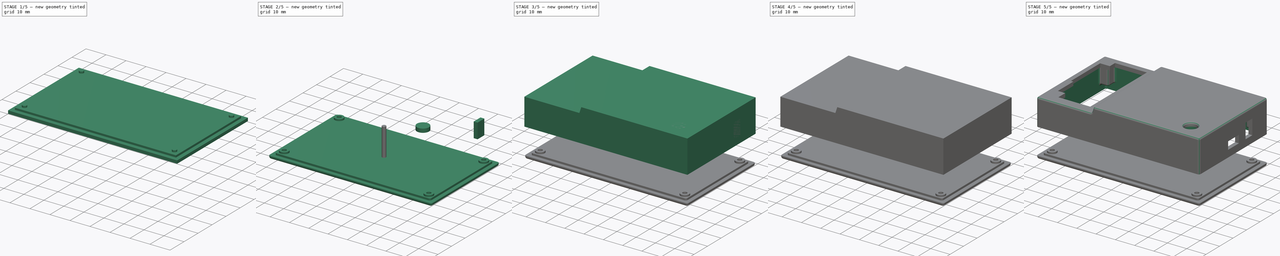
[diagram: build sequence overview — one tinted view per stage of 5, left to right]
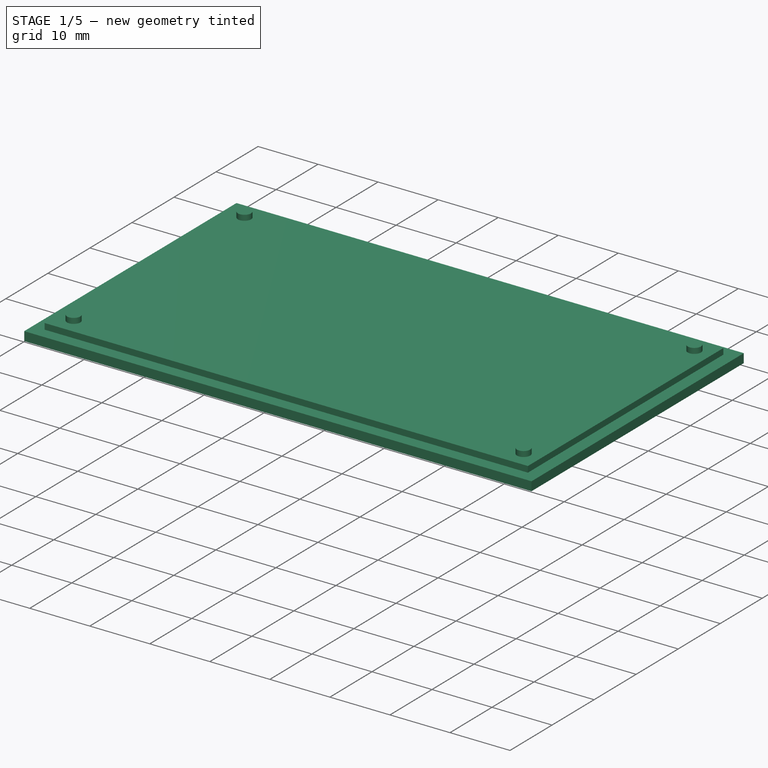
[diagram: stage 1 of 5 — iso view after this stage's code; geometry added in this stage tinted green]
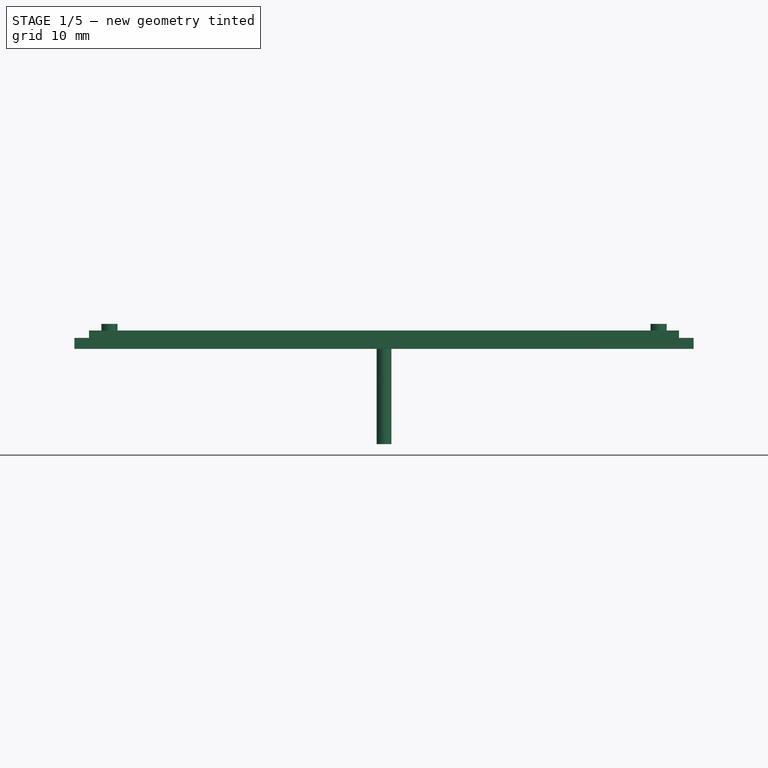
[diagram: stage 1 of 5 — front view after this stage's code; geometry added in this stage tinted green]
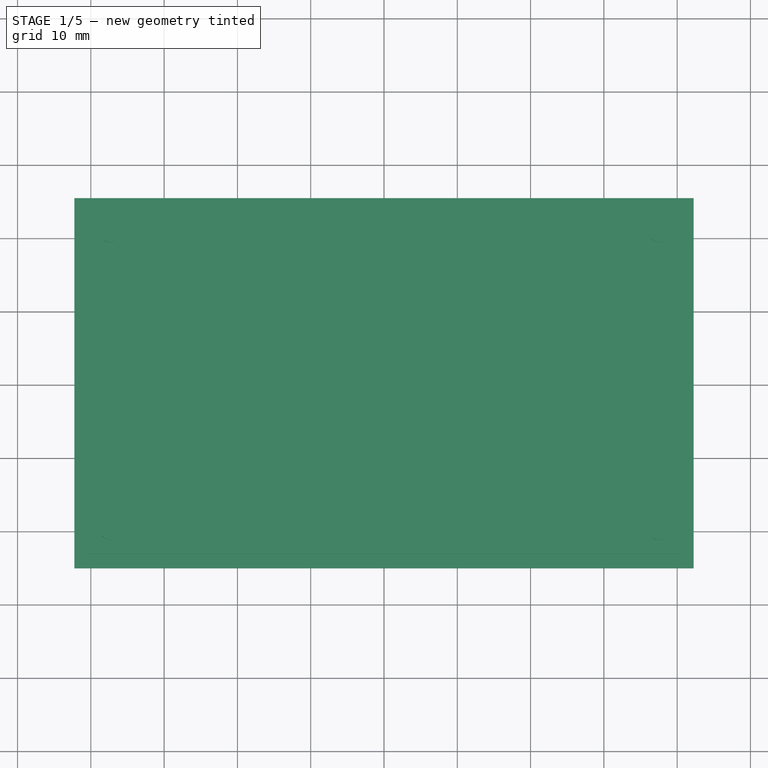
[diagram: stage 1 of 5 — top view after this stage's code; geometry added in this stage tinted green]
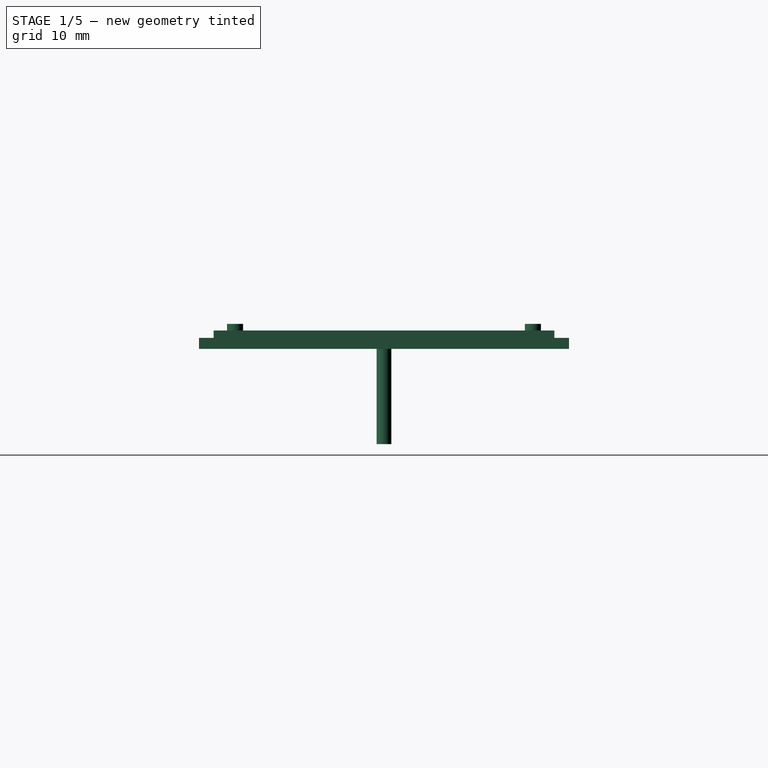
[diagram: stage 1 of 5 — right view after this stage's code; geometry added in this stage tinted green]
FCSTD DOCUMENT  (FreeCAD 0.20R)
Label: st-link-housing
License: All rights reserved
LicenseURL: http://en.wikipedia.org/wiki/All_rights_reserved
objects: Part::Cylinder×11, Part::MultiFuse×11, Part::Cut×9, Part::Part2DObjectPython×6, Part::Box×6, Part::Extrusion×5, PartDesign::Body×4, PartDesign::FeatureBase×3, Part::Fillet×2, Part::Cone×1, Sketcher::SketchObject×1, PartDesign::Revolution×1
note: 61 computed .brp shape members not serialized (recipe doc carries the construction recipe); baked Part::Feature solids carry a one-line shape summary decoded from their .brp

FEATURE [Part::Box] Box004  label="internal_bottom"
  AttacherType = Attacher::AttachEngine3D
  Height = 1
  Length = 80.5
  Placement = pos=(0,0,1.5) rot=(0,0,1;0rad)
  Width = 46.5
FEATURE [Part::Box] Box005  label="external_bottom"
  AttacherType = Attacher::AttachEngine3D
  Height = 1.5
  Length = 84.5
  Placement = pos=(-2,-2,0) rot=(0,0,1;0rad)
  Width = 50.5
FEATURE [Part::Cylinder] Cylinder024  label="screw_column_d"
  Angle = 360
  AttacherType = Attacher::AttachEngine3D
  FirstAngle = 0
  Height = 0.9
  Placement = pos=(37.47,-20.32,0) rot=(0,0,1;0rad)
  Radius = 2.25
  SecondAngle = 0
FEATURE [Part::MultiFuse] Fusion013  label="bottom"
  Placement = pos=(-40.25,-23.25,0) rot=(0,0,1;0rad)
  Shapes = -> [Box004,Box005]
FEATURE [Sketcher::SketchObject] Sketch
  FullyConstrained = false
  MapMode = 5
  Placement = pos=(0,0,0) rot=(1,0,0;1.5708rad)
  Support = -> [XZ_Plane]
  sketch-geometry (6):
    g0: LineSegment StartX=0 StartY=0 StartZ=0 EndX=2 EndY=0 EndZ=0
    g1: LineSegment StartX=2 StartY=0 StartZ=0 EndX=2 EndY=0.2 EndZ=0
    g2: LineSegment StartX=2 StartY=0.2 StartZ=0 EndX=1.1 EndY=1.1 EndZ=0
    g3: LineSegment StartX=0 StartY=0 StartZ=0 EndX=0 EndY=3.4 EndZ=0
    g4: LineSegment StartX=1.1 StartY=3.4 StartZ=0 EndX=1.1 EndY=1.1 EndZ=0
    g5: LineSegment StartX=0 StartY=3.4 StartZ=0 EndX=1.1 EndY=3.4 EndZ=0
  constraints (9):
    c: Coincident(g0,g-1)
    c: PointOnObject(g0,g-1)
    c: Coincident(g1,g0)
    c: Vertical(g1)
    c: PointOnObject(g2,g1)
    c: Coincident(g3,g0)
    c: PointOnObject(g3,g-2)
    c: Vertical(g4)
    c: Coincident(g5,g3)
FEATURE [PartDesign::Revolution] Revolution
  Angle = 360
  Axis = (0,-2e-16,1)
  Base = (0,0,0)
  Placement = pos=(0,0,0) rot=(1,0,0;1.5708rad)
  Profile = -> Sketch
  ReferenceAxis = -> Sketch [V_Axis]
  Reversed = true
FEATURE [PartDesign::Body] Body  label="bottom_screw_hole_a"
  Group = -> [Sketch,Revolution]
  Origin = -> Origin
  Placement = pos=(-37.47,-20.32,0) rot=(0,0,1;0rad)
  Tip = -> Revolution
FEATURE [PartDesign::FeatureBase] Clone
  BaseFeature = -> Body
FEATURE [PartDesign::Body] Body001  label="bottom_screw_hole_b"
  BaseFeature = -> Body
  Group = -> [Clone]
  Origin = -> Origin001
  Placement = pos=(-37.47,20.32,0) rot=(0,0,1;0rad)
  Tip = -> Clone
FEATURE [PartDesign::FeatureBase] Clone001
  BaseFeature = -> Body
FEATURE [PartDesign::Body] Body002  label="bottom_screw_hole_c"
  BaseFeature = -> Body
  Group = -> [Clone001]
  Origin = -> Origin002
  Placement = pos=(37.47,20.32,0) rot=(0,0,1;0rad)
  Tip = -> Clone001
FEATURE [PartDesign::FeatureBase] Clone002
  BaseFeature = -> Body
FEATURE [PartDesign::Body] Body003  label="bottom_screw_hole_d"
  BaseFeature = -> Body
  Group = -> [Clone002]
  Origin = -> Origin003
  Placement = pos=(37.47,-20.32,0) rot=(0,0,1;0rad)
  Tip = -> Clone002
FEATURE [Part::MultiFuse] Fusion016  label="bottom_screw_holes"
  Shapes = -> [Body,Body001,Body002,Body003]
FEATURE [Part::Cylinder] Cylinder025  label="hack"
  Angle = 360
  AttacherType = Attacher::AttachEngine3D
  FirstAngle = 0
  Height = 15
  Placement = pos=(0,0,-13) rot=(0,0,1;0rad)
  Radius = 1
  SecondAngle = 0
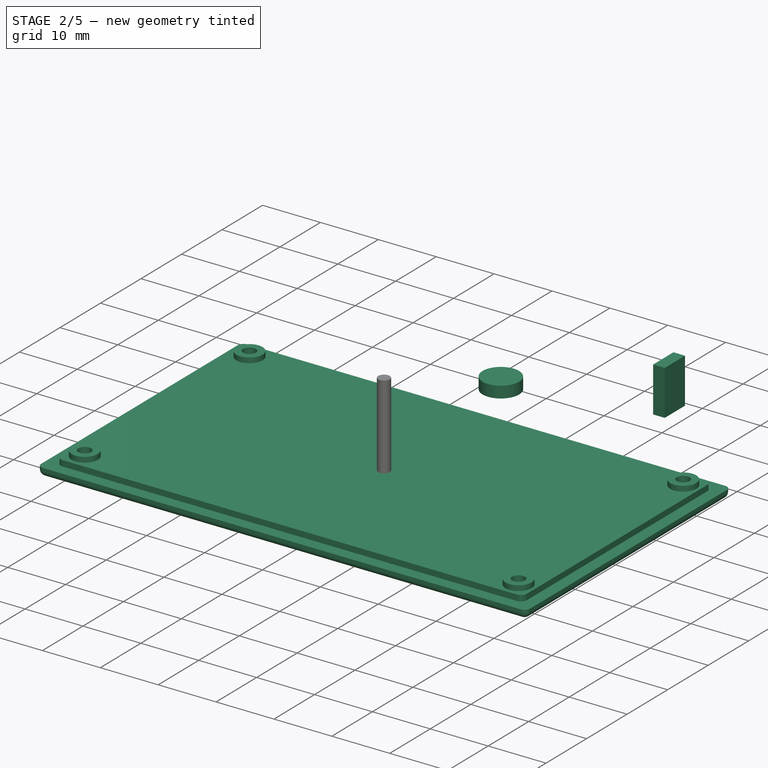
[diagram: stage 2 of 5 — iso view after this stage's code; geometry added in this stage tinted green]
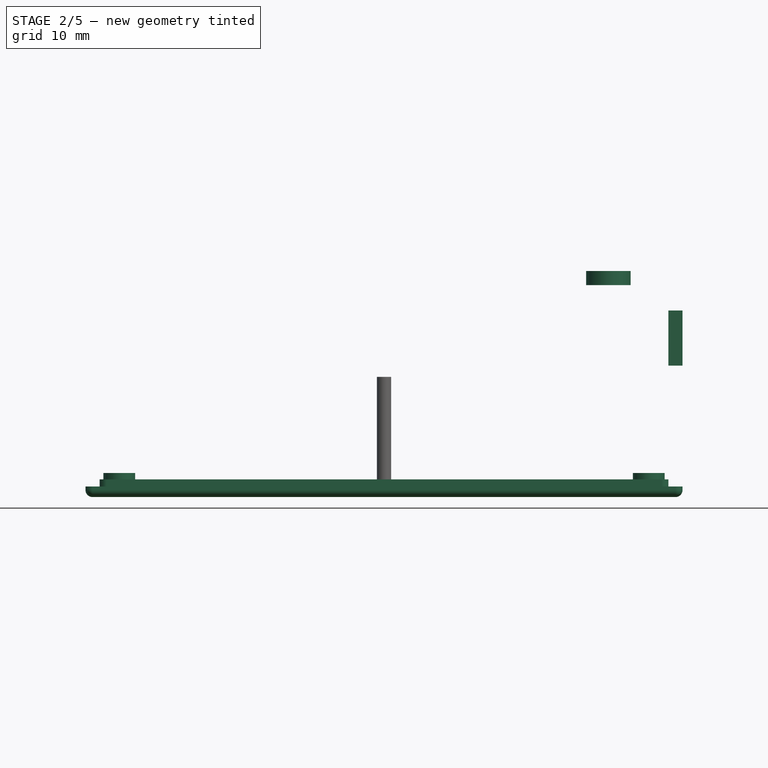
[diagram: stage 2 of 5 — front view after this stage's code; geometry added in this stage tinted green]
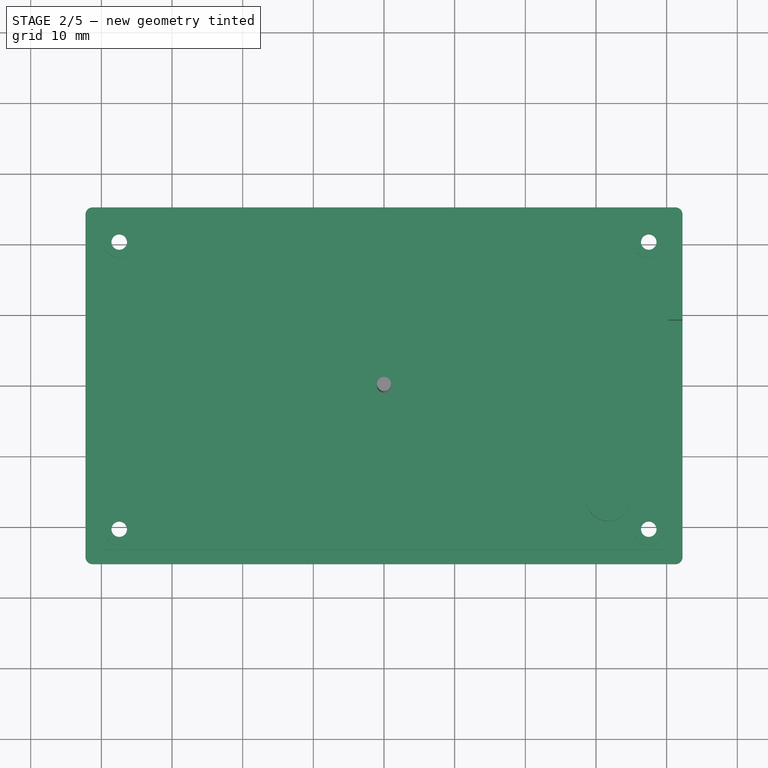
[diagram: stage 2 of 5 — top view after this stage's code; geometry added in this stage tinted green]
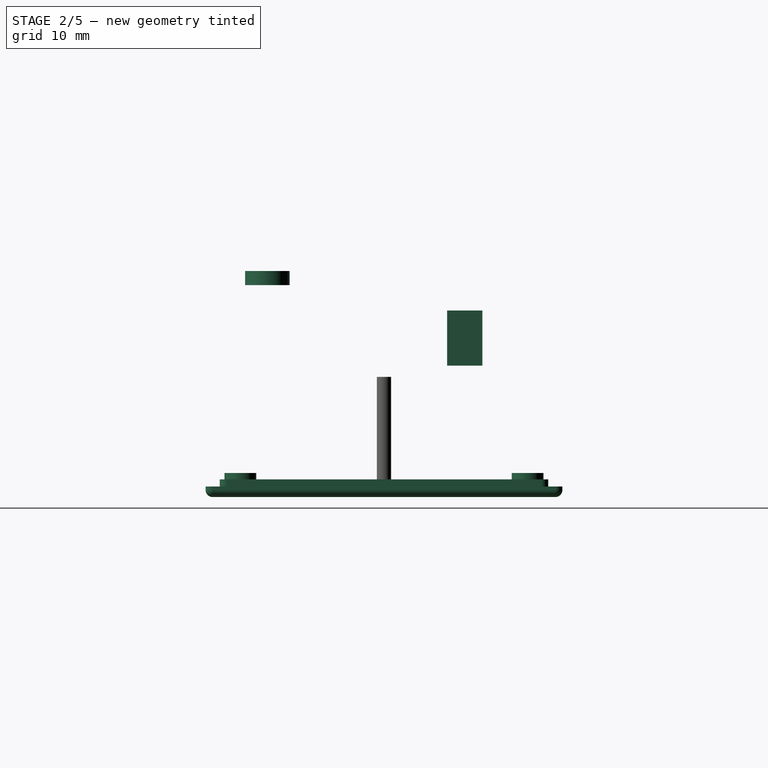
[diagram: stage 2 of 5 — right view after this stage's code; geometry added in this stage tinted green]
FEATURE [Part::Extrusion] Extrude007  label="power-extrude"
  Base = -> Rectangle002
  Dir = (1,0,0)
  DirMode = 2
  FaceMakerClass = Part::FaceMakerBullseye
  LengthFwd = 2
  LengthRev = 0
  Placement = pos=(40.25,0,0) rot=(0,0,1;0rad)
  Solid = false
  Symmetric = false
FEATURE [Part::Cylinder] Cylinder012  label="led_window"
  Angle = 360
  AttacherType = Attacher::AttachEngine3D
  FirstAngle = 0
  Height = 2
  Placement = pos=(31.75,-16.51,15) rot=(0,0,1;0rad)
  Radius = 3.15
  SecondAngle = 0
FEATURE [Part::Cylinder] Cylinder021  label="screw_column_a"
  Angle = 360
  AttacherType = Attacher::AttachEngine3D
  FirstAngle = 0
  Height = 0.9
  Placement = pos=(-37.47,20.32,0) rot=(0,0,1;0rad)
  Radius = 2.25
  SecondAngle = 0
FEATURE [Part::Cylinder] Cylinder022  label="screw_column_b"
  Angle = 360
  AttacherType = Attacher::AttachEngine3D
  FirstAngle = 0
  Height = 0.9
  Placement = pos=(-37.47,-20.32,0) rot=(0,0,1;0rad)
  Radius = 2.25
  SecondAngle = 0
FEATURE [Part::Cylinder] Cylinder023  label="screw_column_c"
  Angle = 360
  AttacherType = Attacher::AttachEngine3D
  FirstAngle = 0
  Height = 0.9
  Placement = pos=(37.47,20.32,0) rot=(0,0,1;0rad)
  Radius = 2.25
  SecondAngle = 0
FEATURE [Part::MultiFuse] Fusion011  label="screw_columns"
  Placement = pos=(0,0,2.5) rot=(0,0,1;0rad)
  Shapes = -> [Cylinder021,Cylinder022,Cylinder023,Cylinder024]
FEATURE [Part::MultiFuse] Fusion014  label="bottom_with_columns"
  Shapes = -> [Fusion013,Fusion011]
FEATURE [Part::Cut] Cut014  label="bottom_with_screw_holes"
  Base = -> Fusion014
  Tool = -> Fusion016
FEATURE [Part::Fillet] Fillet001  label="bottom_body"
  Base = -> Cut014
  Edges = 12 edges r=1.01: [Edge1,Edge3,Edge4,Edge5,Edge6,Edge14,Edge15,Edge16,Edge21,Edge23,Edge24,Edge27]
  Placement = pos=(0,0,-15) rot=(0,0,1;0rad)
FEATURE [Part::MultiFuse] Fusion017  label="bottom_body_jlcpcb"
  Shapes = -> [Fillet001,Cylinder025]
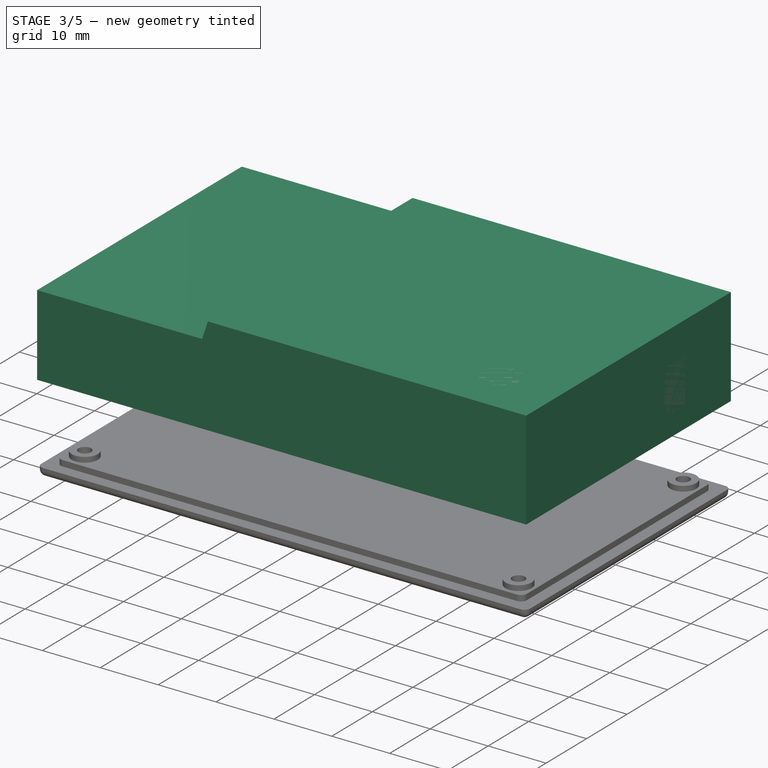
[diagram: stage 3 of 5 — iso view after this stage's code; geometry added in this stage tinted green]
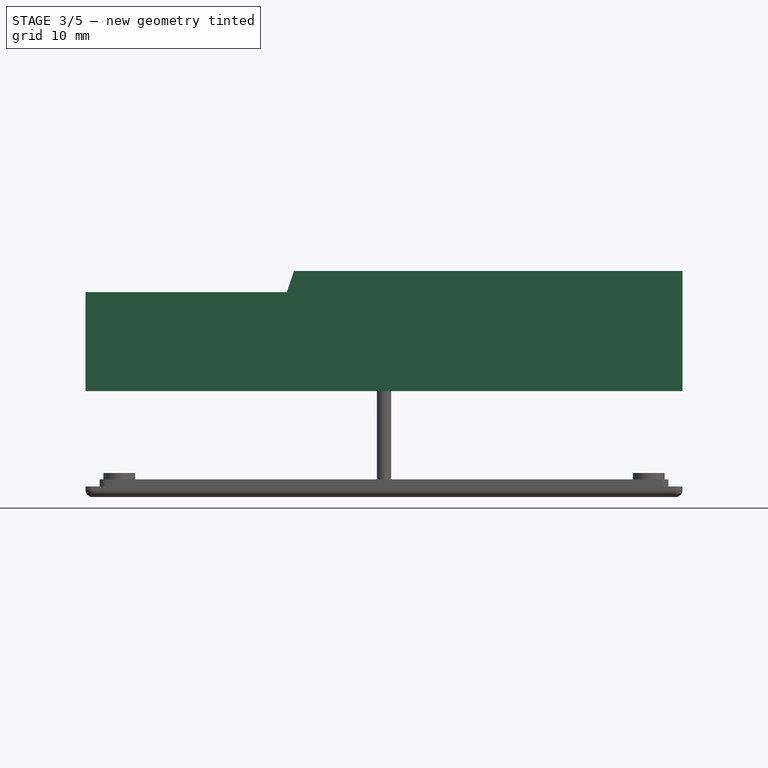
[diagram: stage 3 of 5 — front view after this stage's code; geometry added in this stage tinted green]
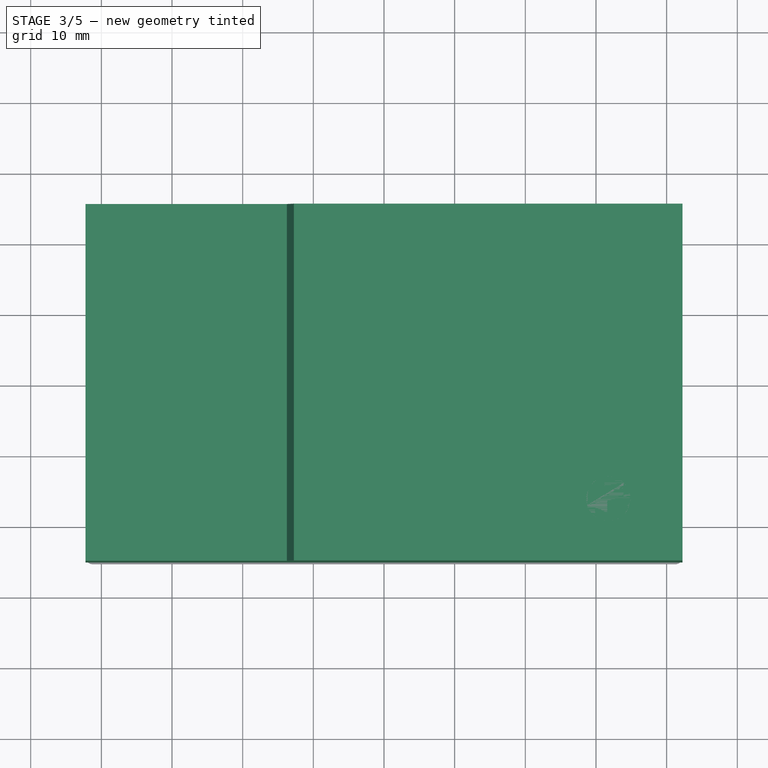
[diagram: stage 3 of 5 — top view after this stage's code; geometry added in this stage tinted green]
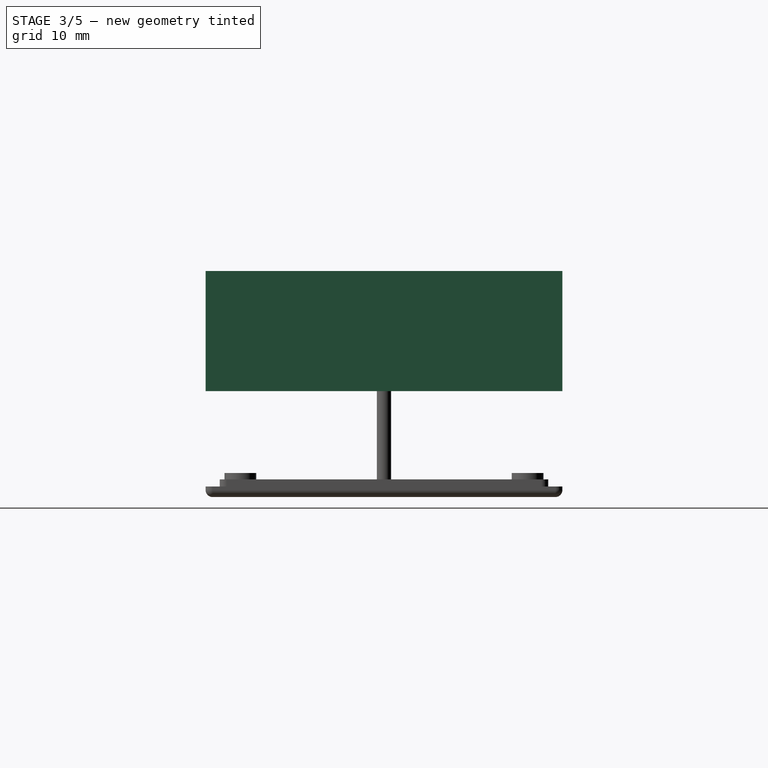
[diagram: stage 3 of 5 — right view after this stage's code; geometry added in this stage tinted green]
FEATURE [Part::Box] Box003  label="mounting_cube_c"
  AttacherType = Attacher::AttachEngine3D
  Height = 11.4
  Length = 4.68
  Placement = pos=(35.57,-23.25,3.6) rot=(0,0,1;0rad)
  Width = 4.82
FEATURE [Part::Cylinder] Cylinder011  label="screw_hole_c"
  Angle = 360
  AttacherType = Attacher::AttachEngine3D
  FirstAngle = 0
  Height = 6
  Placement = pos=(37.465,-20.32,3.6) rot=(0,0,1;0rad)
  Radius = 0.8
  SecondAngle = 0
FEATURE [Part::Cut] Cut010  label="mounting_rack_c"
  Base = -> Box003
  Tool = -> Cylinder011
FEATURE [Part::Part2DObjectPython] Wire005  label="extermal-wire"  # Draft 2D object (typed FeaturePython)
  Area = 1349.5
  ChamferSize = 0
  Closed = true
  End = (-42.25,0,0)
  FilletRadius = 0
  Length = 202.162
  MakeFace = true
  Placement = pos=(42.25,0,0) rot=(1,0,0;1.5708rad)
  Points = (6) [(0,0,0),(0,17,0),(-55,17,0),(-56,14,0),(-84.5,14,0),(-84.5,0,0)]
  Start = (42.25,0,0)
  Subdivisions = 0
FEATURE [Part::Extrusion] Extrude  label="external_extrude"
  Base = -> Wire005
  Dir = (0,-1,2e-16)
  DirMode = 2
  FaceMakerClass = Part::FaceMakerBullseye
  LengthFwd = 50.5
  LengthRev = 0
  Solid = false
  Symmetric = true
FEATURE [Part::Part2DObjectPython] Wire  label="connectors_wire"  # Draft 2D object (typed FeaturePython)
  Area = 844.08
  ChamferSize = 0
  Closed = true
  End = (-34.29,21.59,12)
  FilletRadius = 0
  Length = 126.9
  MakeFace = true
  Points = (10) [(-17.78,21.59,12),(-17.78,-20.32,12),(-34.29,-20.32,12),(-34.29,-15.24,12),(-38.1,-15.24,12),(-38.1,-3.81,12),(-39.32,-3.81,12),(-39.32,17.78,12),(-34.29,17.78,12),(-34.29,21.59,12)]
  Start = (-17.78,21.59,12)
  Subdivisions = 0
FEATURE [Part::Extrusion] Extrude005  label="dbg_connector"
  Base = -> Wire
  Dir = (0,0,1)
  DirMode = 2
  FaceMakerClass = Part::FaceMakerBullseye
  LengthFwd = 2
  LengthRev = 0
  Solid = false
  Symmetric = false
FEATURE [Part::Part2DObjectPython] Rectangle001  label="usb_rectangle"  # Draft 2D object (typed FeaturePython)
  Area = 32
  ChamferSize = 0
  Columns = 1
  FilletRadius = 0
  Height = 4
  Length = 8
  MakeFace = true
  Placement = pos=(0,-4,3.6) rot=(0.57735,0.57735,0.57735;2.0944rad)
  Rows = 1
FEATURE [Part::Part2DObjectPython] Rectangle002  label="power_rectangle"  # Draft 2D object (typed FeaturePython)
  Area = 39
  ChamferSize = 0
  Columns = 1
  FilletRadius = 0
  Height = 7.8
  Length = 5
  MakeFace = true
  Placement = pos=(0,8.93,3.6) rot=(0.57735,0.57735,0.57735;2.0944rad)
  Rows = 1
FEATURE [Part::Extrusion] Extrude006  label="usb-extrude"
  Base = -> Rectangle001
  Dir = (1,0,0)
  DirMode = 2
  FaceMakerClass = Part::FaceMakerBullseye
  LengthFwd = 2
  LengthRev = 0
  Placement = pos=(40.25,0,0) rot=(0,0,1;0rad)
  Solid = false
  Symmetric = false
FEATURE [Part::MultiFuse] Fusion001  label="usb_connector"
  Shapes = -> [Extrude006,Extrude007]
FEATURE [Part::MultiFuse] Fusion002  label="connector_window"
  Shapes = -> [Extrude005,Fusion001]
FEATURE [Part::MultiFuse] Fusion003  label="window"
  Shapes = -> [Fusion002,Cylinder012]
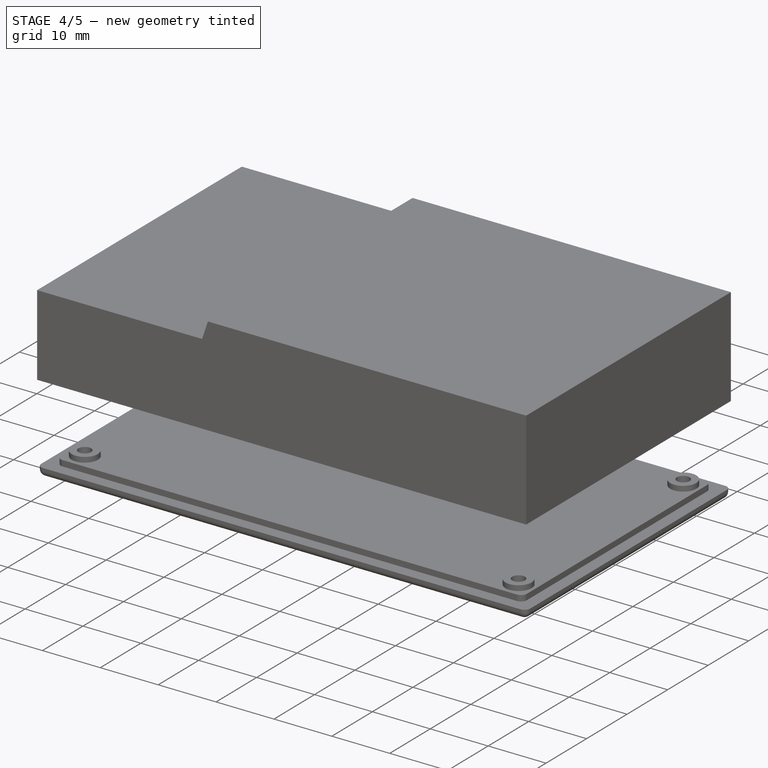
[diagram: stage 4 of 5 — iso view after this stage's code; geometry added in this stage tinted green]
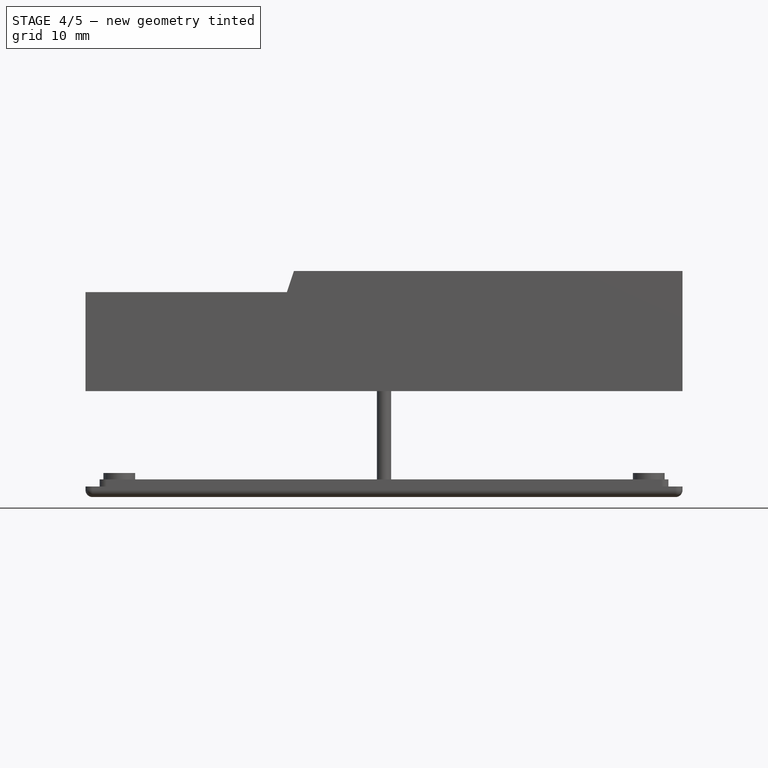
[diagram: stage 4 of 5 — front view after this stage's code; geometry added in this stage tinted green]
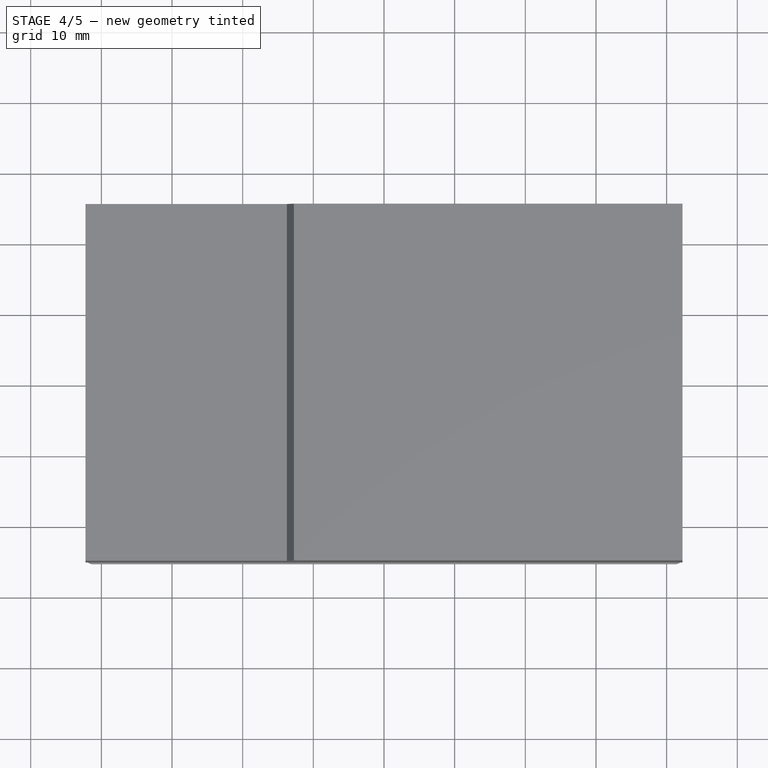
[diagram: stage 4 of 5 — top view after this stage's code; geometry added in this stage tinted green]
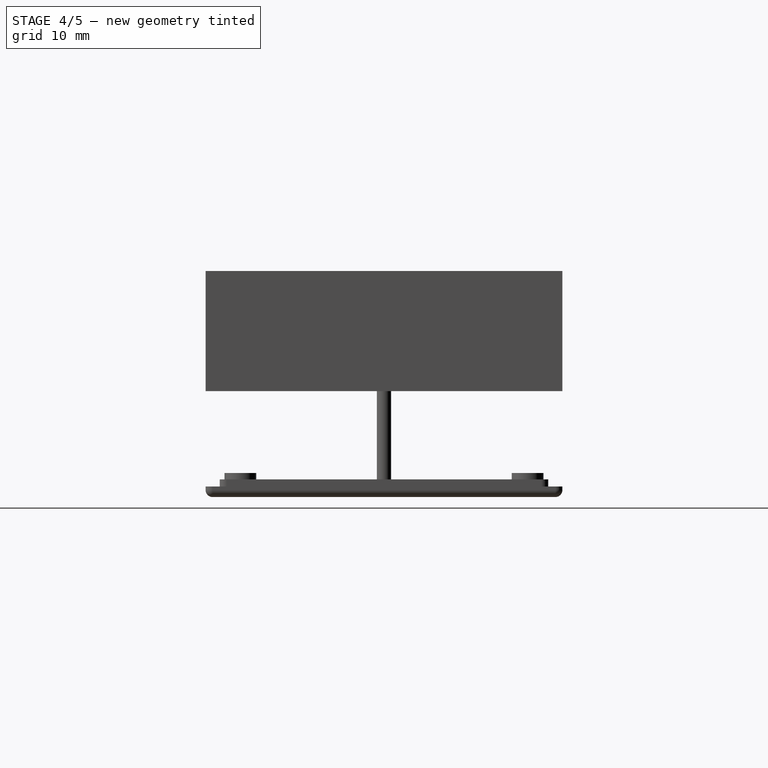
[diagram: stage 4 of 5 — right view after this stage's code; geometry added in this stage tinted green]
FEATURE [Part::Box] Box  label="mounting_cube_b"
  AttacherType = Attacher::AttachEngine3D
  Height = 8.4
  Length = 4.68
  Placement = pos=(-40.25,18.43,3.6) rot=(0,0,1;0rad)
  Width = 4.82
FEATURE [Part::Box] Box001  label="mounting_cube_a"
  AttacherType = Attacher::AttachEngine3D
  Height = 8.4
  Length = 4.68
  Placement = pos=(-40.25,-23.25,3.6) rot=(0,0,1;0rad)
  Width = 4.82
FEATURE [Part::Box] Box002  label="mounting_cube_d"
  AttacherType = Attacher::AttachEngine3D
  Height = 11.4
  Length = 4.68
  Placement = pos=(35.57,18.43,3.6) rot=(0,0,1;0rad)
  Width = 4.82
FEATURE [Part::Cylinder] Cylinder008  label="screw_hole_a"
  Angle = 360
  AttacherType = Attacher::AttachEngine3D
  FirstAngle = 0
  Height = 6
  Placement = pos=(-37.465,-20.32,3.6) rot=(0,0,1;0rad)
  Radius = 0.8
  SecondAngle = 0
FEATURE [Part::Cylinder] Cylinder009  label="screw_hole_b"
  Angle = 360
  AttacherType = Attacher::AttachEngine3D
  FirstAngle = 0
  Height = 6
  Placement = pos=(-37.465,20.32,3.6) rot=(0,0,1;0rad)
  Radius = 0.8
  SecondAngle = 0
FEATURE [Part::Cylinder] Cylinder010  label="screw_hole_d"
  Angle = 360
  AttacherType = Attacher::AttachEngine3D
  FirstAngle = 0
  Height = 6
  Placement = pos=(37.465,20.32,3.6) rot=(0,0,1;0rad)
  Radius = 0.8
  SecondAngle = 0
FEATURE [Part::Cut] Cut007  label="mounting_rack_a"
  Base = -> Box001
  Tool = -> Cylinder008
FEATURE [Part::Cut] Cut008  label="mounting_rack_b"
  Base = -> Box
  Tool = -> Cylinder009
FEATURE [Part::Cut] Cut009  label="mounting_rack_d"
  Base = -> Box002
  Tool = -> Cylinder010
FEATURE [Part::MultiFuse] Fusion  label="mounting_racks"
  Shapes = -> [Cut007,Cut008,Cut009,Cut010]
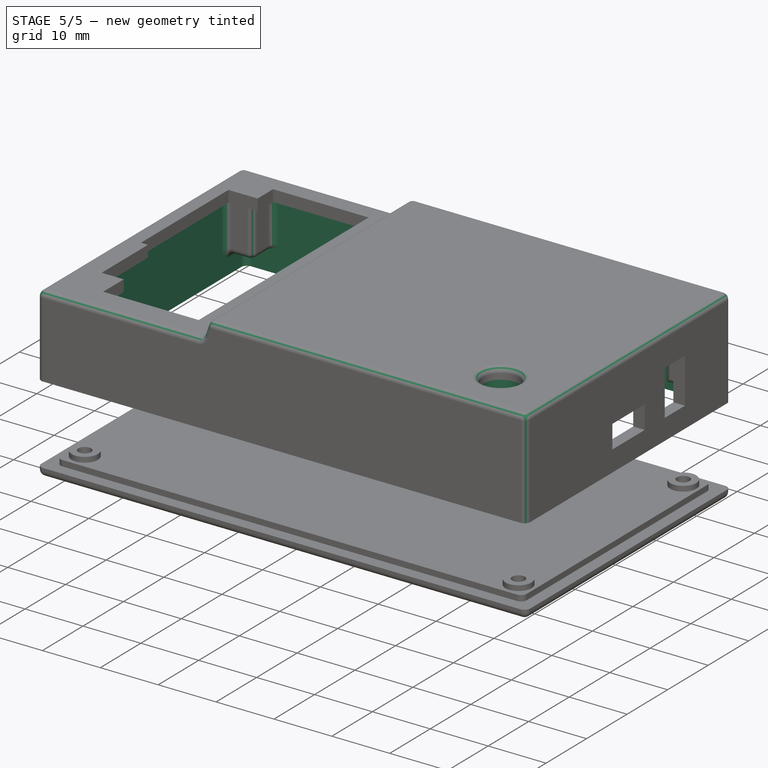
[diagram: stage 5 of 5 — iso view after this stage's code; geometry added in this stage tinted green]
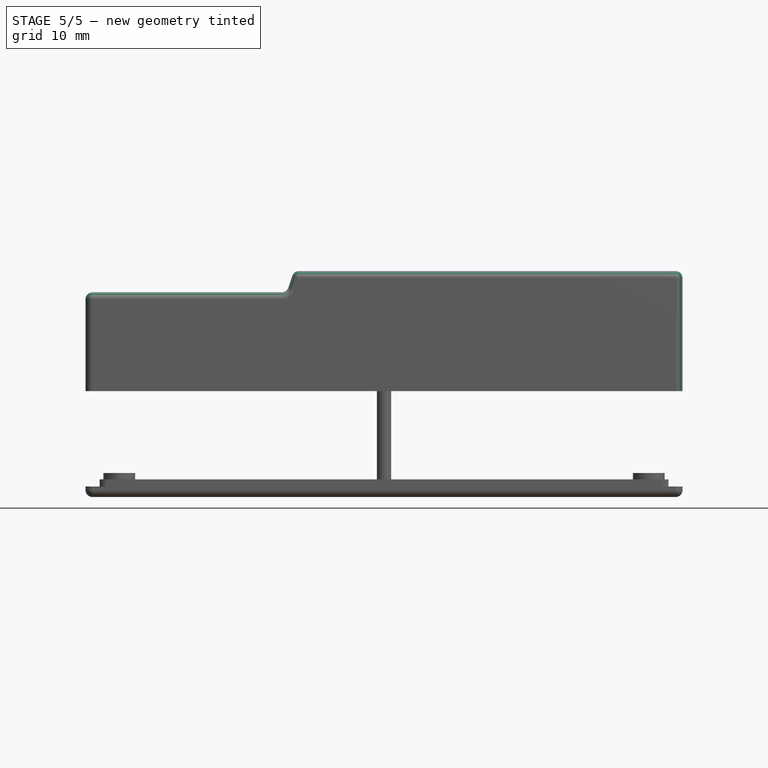
[diagram: stage 5 of 5 — front view after this stage's code; geometry added in this stage tinted green]
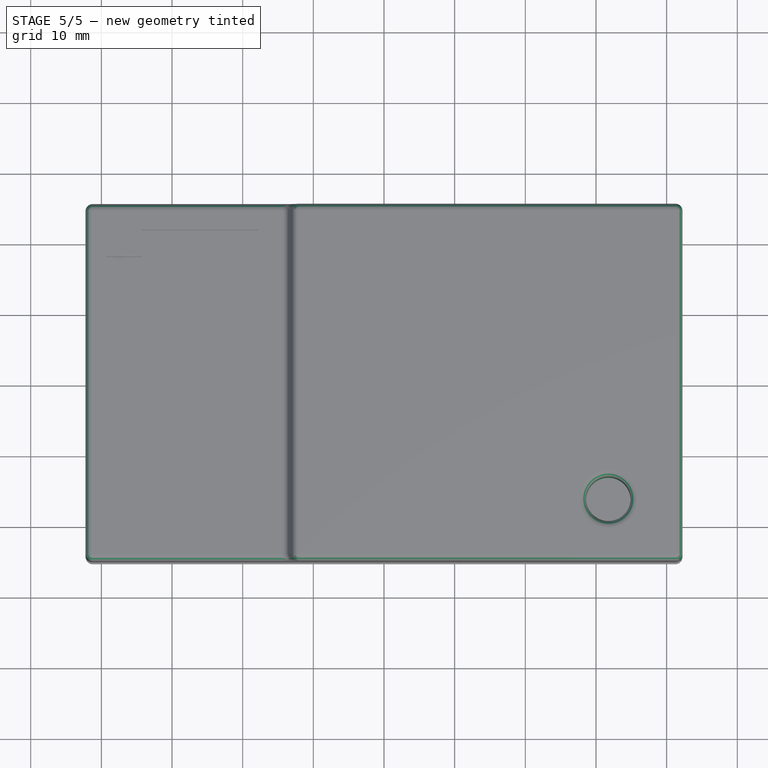
[diagram: stage 5 of 5 — top view after this stage's code; geometry added in this stage tinted green]
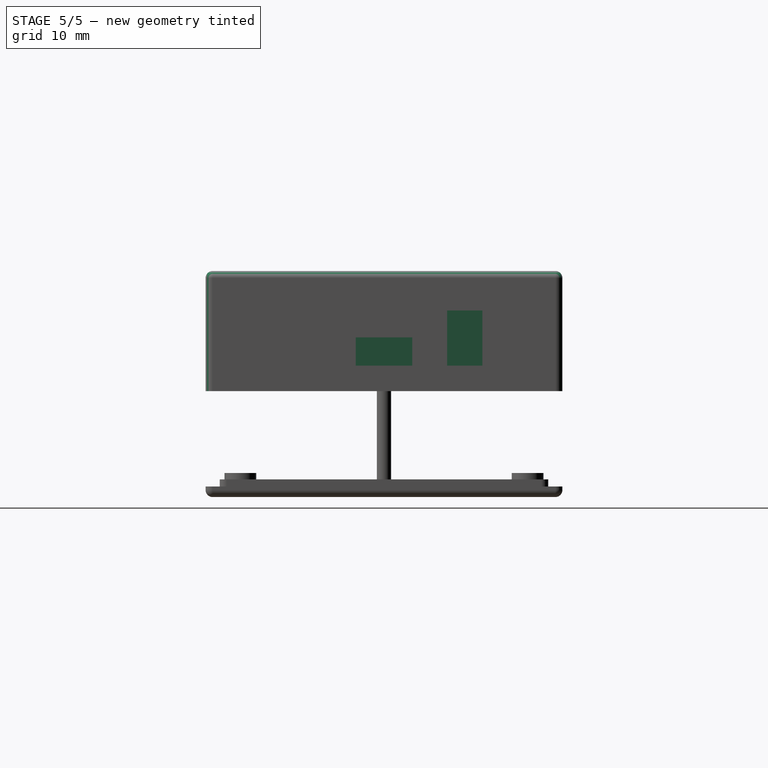
[diagram: stage 5 of 5 — right view after this stage's code; geometry added in this stage tinted green]
FEATURE [Part::Part2DObjectPython] Rectangle  # Draft 2D object (typed FeaturePython)
  Area = 5000
  ChamferSize = 0
  Columns = 1
  FilletRadius = 0
  Height = 50
  Length = 100
  MakeFace = true
  Placement = pos=(-50.0799,0,-20.22) rot=(1,0,0;1.5708rad)
  Rows = 1
FEATURE [Part::Part2DObjectPython] Wire004  label="internal-wire"  # Draft 2D object (typed FeaturePython)
  Area = 1123.5
  ChamferSize = 0
  Closed = true
  End = (-40.25,0,2e-15)
  FilletRadius = 0
  Length = 190.162
  MakeFace = true
  Placement = pos=(40.25,0,2e-15) rot=(1,0,0;1.5708rad)
  Points = (6) [(0,0,0),(0,15,0),(-52,15,0),(-53,12,0),(-80.5,12,0),(-80.5,0,0)]
  Start = (40.25,0,2e-15)
  Subdivisions = 0
FEATURE [Part::Extrusion] Extrude004  label="internal-extrude"
  Base = -> Wire004
  Dir = (0,-1,2e-16)
  DirMode = 2
  FaceMakerClass = Part::FaceMakerBullseye
  LengthFwd = 46.5
  LengthRev = 0
  Solid = false
  Symmetric = true
FEATURE [Part::Cut] Cut011  label="internal_mounting_racks"
  Base = -> Extrude004
  Tool = -> Fusion
FEATURE [Part::Cone] Cone  label="led_cone"
  Angle = 360
  AttacherType = Attacher::AttachEngine3D
  Height = 9
  Placement = pos=(31.75,-16.51,6) rot=(0,0,1;0rad)
  Radius1 = 5
  Radius2 = 6
FEATURE [Part::Cylinder] Cylinder  label="led_cylinder"
  Angle = 360
  AttacherType = Attacher::AttachEngine3D
  FirstAngle = 0
  Height = 9
  Placement = pos=(31.75,-16.51,6) rot=(0,0,1;0rad)
  Radius = 3.15
  SecondAngle = 0
FEATURE [Part::Cut] Cut  label="top"
  Base = -> Extrude
  Tool = -> Cut011
FEATURE [Part::Cut] Cut012  label="led_tower"
  Base = -> Cone
  Tool = -> Cylinder
FEATURE [Part::Cut] Cut013  label="top_with_window"
  Base = -> Cut
  Tool = -> Fusion003
FEATURE [Part::Fillet] Fillet  label="top_fillet"
  Base = -> Cut013
  Edges = 54 edges r=1.01: [Edge2,Edge3,Edge4,Edge20,Edge21,Edge22,Edge23,Edge24,Edge25,Edge26,Edge27,Edge28,Edge29,Edge46,Edge47,Edge49,Edge50,Edge51,Edge52,Edge53,Edge54,Edge55,Edge56,Edge57,Edge58,Edge59,Edge60,Edge62,Edge63,Edge64,Edge65,Edge66,Edge67,Edge68,Edge69,Edge70,Edge71,Edge72,Edge73,Edge74,Edge75,Edge88,Edge89,+11 more]
FEATURE [Part::MultiFuse] Fusion004  label="top_body"
  Shapes = -> [Fillet,Cut012]
FEATURE [Part::MultiFuse] Fusion015  label="housing"
  Shapes = -> [Fusion004,Fillet001]
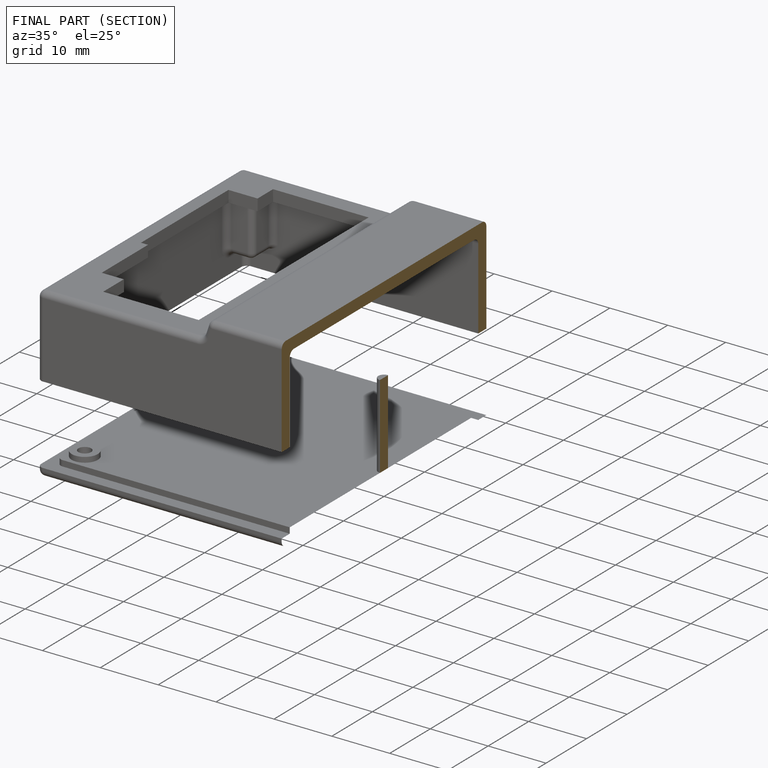
[diagram: finished part — half-section view (interior)]
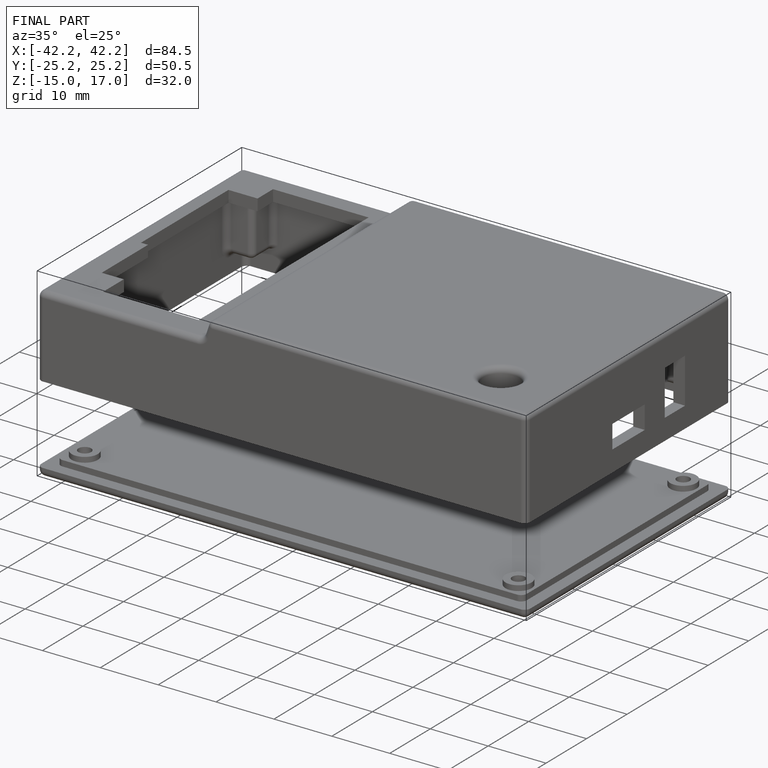
[diagram: finished part — iso view with bounding-box wireframe]
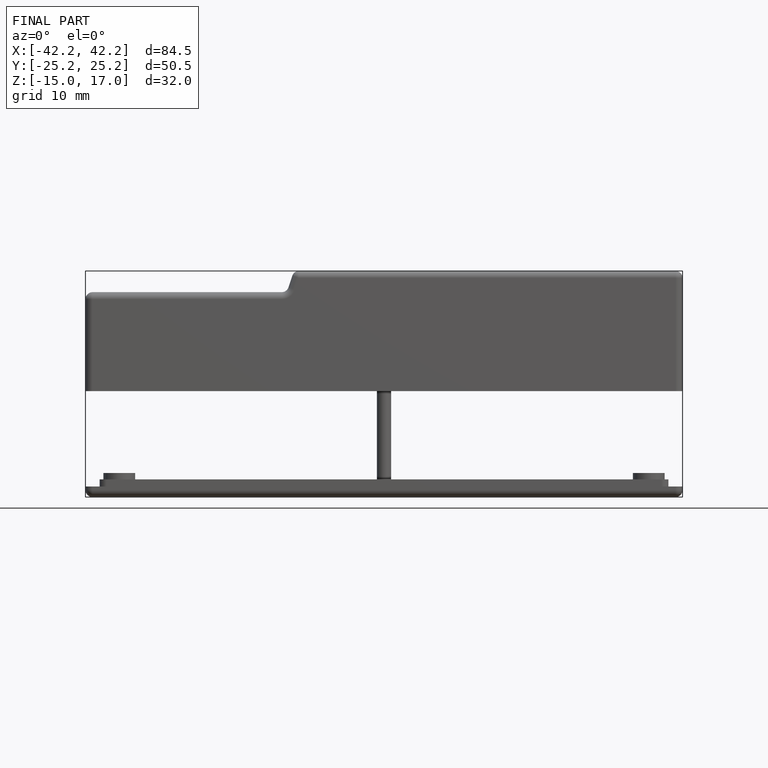
[diagram: finished part — front view with bounding-box wireframe]
